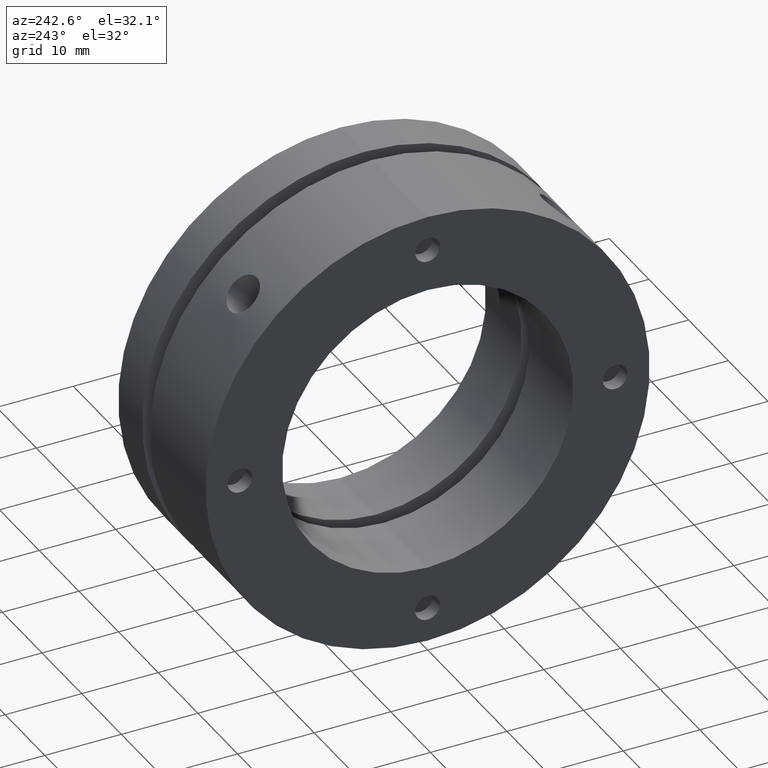
[diagram: clean part render]
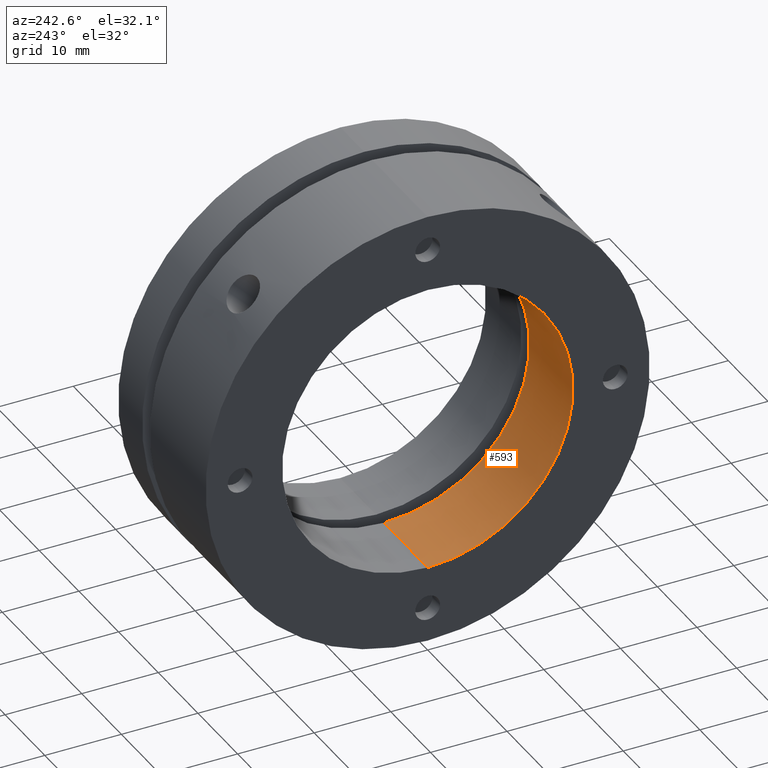
[diagram: same view with one face highlighted and labeled with its STEP entity id]
A machine part, auxiliary view. The second image highlights one B-rep face of the part: STEP entity #593.
In plain terms, the highlighted cylindrical surface (partial cylindrical patch) has radius 19 mm, axis along (1, 0, 0).
Its self-contained STEP definition (entity closure, byte-faithful):
#84 = ORIENTED_EDGE ( 'NONE', *, *, #3423, .T. ) ;
#150 = ORIENTED_EDGE ( 'NONE', *, *, #3422, .F. ) ;
#159 = ORIENTED_EDGE ( 'NONE', *, *, #3426, .F. ) ;
#179 = ORIENTED_EDGE ( 'NONE', *, *, #3425, .F. ) ;
#490 = AXIS2_PLACEMENT_3D ( 'NONE', #2589, #2590, #2591 ) ;
#491 = AXIS2_PLACEMENT_3D ( 'NONE', #2596, #2597, #2598 ) ;
#593 = ADVANCED_FACE ( 'NONE', ( #1325 ), #1329, .F. ) ;
#995 = LINE ( 'NONE', #2554, #1001 ) ;
#999 = CIRCLE ( 'NONE', #490, 19.00000000000000000 ) ;
#1000 = CIRCLE ( 'NONE', #491, 19.00000000000000000 ) ;
#1001 = VECTOR ( 'NONE', #2555, 1000.000000000000000 ) ;
#1004 = LINE ( 'NONE', #2594, #1006 ) ;
#1006 = VECTOR ( 'NONE', #2592, 1000.000000000000000 ) ;
#1190 = VERTEX_POINT ( 'NONE', #2269 ) ;
#1191 = VERTEX_POINT ( 'NONE', #2270 ) ;
#1192 = VERTEX_POINT ( 'NONE', #2271 ) ;
#1196 = VERTEX_POINT ( 'NONE', #2275 ) ;
#1325 = FACE_OUTER_BOUND ( 'NONE', #3307, .T. ) ;
#1329 = CYLINDRICAL_SURFACE ( 'NONE', #1626, 19.00000000000000000 ) ;
#1626 = AXIS2_PLACEMENT_3D ( 'NONE', #1745, #1744, #1741 ) ;
#1741 = DIRECTION ( 'NONE',  ( 0.0000000000000000000, 0.0000000000000000000, -1.000000000000000000 ) ) ;
#1744 = DIRECTION ( 'NONE',  ( 1.000000000000000000, 0.0000000000000000000, 0.0000000000000000000 ) ) ;
#1745 = CARTESIAN_POINT ( 'NONE',  ( 10.99999999999999500, 0.0000000000000000000, 0.0000000000000000000 ) ) ;
#2269 = CARTESIAN_POINT ( 'NONE',  ( 11.00000000000002100, 2.326828918379971000E-015, 19.00000000000000000 ) ) ;
#2270 = CARTESIAN_POINT ( 'NONE',  ( 11.00000000000002100, 0.0000000000000000000, -19.00000000000000000 ) ) ;
#2271 = CARTESIAN_POINT ( 'NONE',  ( -5.204170427930421300E-015, 2.326828918379971000E-015, 19.00000000000000000 ) ) ;
#2275 = CARTESIAN_POINT ( 'NONE',  ( -5.204170427930421300E-015, 0.0000000000000000000, -19.00000000000000000 ) ) ;
#2554 = CARTESIAN_POINT ( 'NONE',  ( 10.99999999999999500, 2.326828918379971000E-015, 19.00000000000000000 ) ) ;
#2555 = DIRECTION ( 'NONE',  ( 1.000000000000000000, 0.0000000000000000000, 0.0000000000000000000 ) ) ;
#2589 = CARTESIAN_POINT ( 'NONE',  ( -5.204170427930421300E-015, 0.0000000000000000000, 0.0000000000000000000 ) ) ;
#2590 = DIRECTION ( 'NONE',  ( 1.000000000000000000, 0.0000000000000000000, 0.0000000000000000000 ) ) ;
#2591 = DIRECTION ( 'NONE',  ( 0.0000000000000000000, 0.0000000000000000000, -1.000000000000000000 ) ) ;
#2592 = DIRECTION ( 'NONE',  ( 1.000000000000000000, 0.0000000000000000000, 0.0000000000000000000 ) ) ;
#2594 = CARTESIAN_POINT ( 'NONE',  ( 10.99999999999999500, 0.0000000000000000000, -19.00000000000000000 ) ) ;
#2596 = CARTESIAN_POINT ( 'NONE',  ( 11.00000000000002100, 0.0000000000000000000, 0.0000000000000000000 ) ) ;
#2597 = DIRECTION ( 'NONE',  ( -1.000000000000000000, -0.0000000000000000000, -0.0000000000000000000 ) ) ;
#2598 = DIRECTION ( 'NONE',  ( 0.0000000000000000000, 0.0000000000000000000, -1.000000000000000000 ) ) ;
#3307 = EDGE_LOOP ( 'NONE', ( #150, #84, #179, #159 ) ) ;
#3422 = EDGE_CURVE ( 'NONE', #1192, #1196, #999, .T. ) ;
#3423 = EDGE_CURVE ( 'NONE', #1192, #1190, #995, .T. ) ;
#3425 = EDGE_CURVE ( 'NONE', #1191, #1190, #1000, .T. ) ;
#3426 = EDGE_CURVE ( 'NONE', #1196, #1191, #1004, .T. ) ;